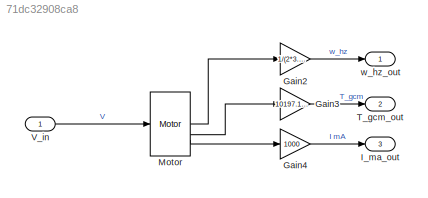
MODEL slx_71dc32908ca8
KIND model
CONFIG AbsTol = auto
CONFIG EnableMultiTasking = off
CONFIG FixedStep = 0.0001
CONFIG MaxStep = 0.001
CONFIG MinStep = auto
CONFIG RelTol = 1e-3
CONFIG SampleTimeConstraint = Unconstrained
CONFIG SolverName = FixedStepAuto
CONFIG StartTime = 0.0
CONFIG StopTime = 5
WORKSPACE source: mxarray member
WORKSPACE F = 1.3e-07
WORKSPACE J = 1e-09
WORKSPACE K_t = 0.0014172
WORKSPACE L = 0.00024
WORKSPACE R = 2.4
BLOCK [Gain] Gain2
  Gain = 1/(2*3.14)
BLOCK [Gain] Gain3
  Gain = 10197.162129779
BLOCK [Gain] Gain4
  Gain = 1000
BLOCK [Outport] I_ma_out
  Port = 3
BLOCK [Reference] Motor  REF=BrushedDC/Motor
  SourceBlock = BrushedDC/Motor
  SourceType = SubSystem
BLOCK [Outport] T_gcm_out
  Port = 2
BLOCK [Inport] V_in
BLOCK [Outport] w_hz_out
LINE Gain2:1 -> w_hz_out:1
LINE Gain3:1 -> T_gcm_out:1
LINE Gain4:1 -> I_ma_out:1
LINE Motor:1 -> Gain2:1
LINE Motor:2 -> Gain3:1
LINE Motor:3 -> Gain4:1
LINE V_in:1 -> Motor:1
